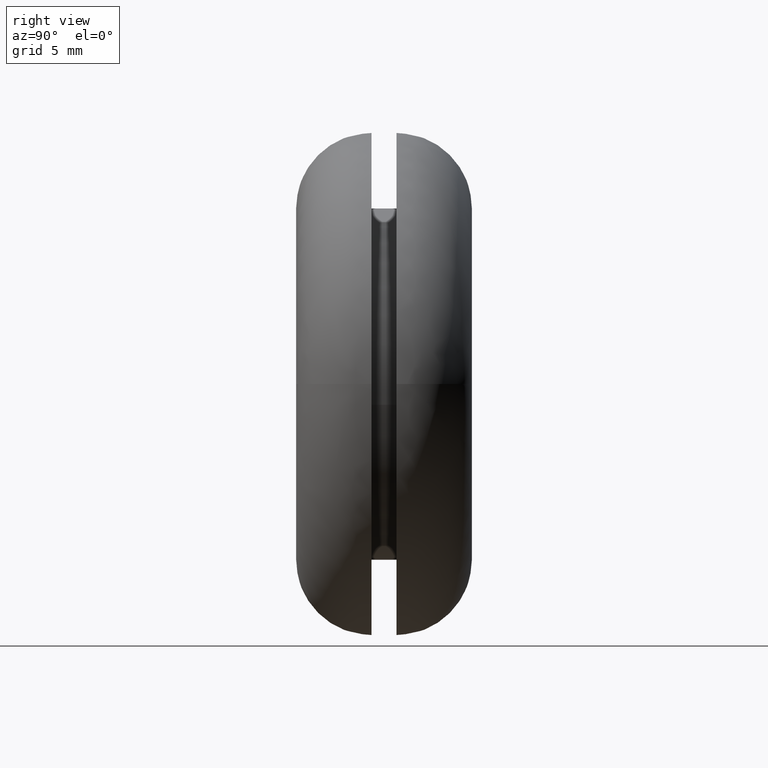
[diagram: clean part render]
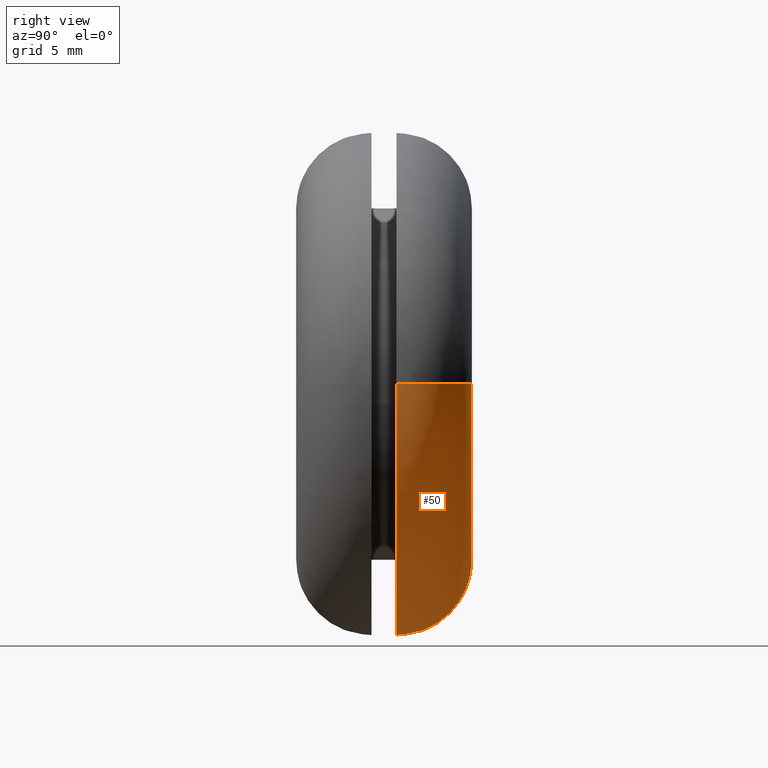
[diagram: same view with one face highlighted and labeled with its STEP entity id]
A machine part, right view. The second image highlights one B-rep face of the part: STEP entity #50.
In plain terms, the highlighted face is a freeform B-spline surface patch.
Its self-contained STEP definition (entity closure, byte-faithful):
#50=ADVANCED_FACE('',(#157),#156,.T.);
#156=( BOUNDED_SURFACE() B_SPLINE_SURFACE( 2,2,((#272,#273,#274,#275,#276),(#277,#278,#279,#280,#281),(#282,#283,#284,#285,#286),(#287,#288,#289,#290,#291),(#292,#293,#294,#295,#296)), .UNSPECIFIED.,.F.,.F.,.F.) B_SPLINE_SURFACE_WITH_KNOTS((3,2,3),(3,2,3),(0.00000000000E+000,5.00000000000E-001,1.00000000000E+000),(0.00000000000E+000,5.00000000000E-001,1.00000000000E+000), .UNSPECIFIED. ) GEOMETRIC_REPRESENTATION_ITEM() RATIONAL_B_SPLINE_SURFACE(((1.00000000000E+000,7.07106780997E-001,1.00000000000E+000,7.07106780997E-001,1.00000000000E+000),(7.07106781187E-001,4.99999999866E-001,7.07106781187E-001,4.99999999866E-001,7.07106781187E-001),(1.00000000000E+000,7.07106780997E-001,1.00000000000E+000,7.07106780997E-001,1.00000000000E+000),(7.07106781187E-001,4.99999999866E-001,7.07106781187E-001,4.99999999866E-001,7.07106781187E-001),(1.00000000000E+000,7.07106780997E-001,1.00000000000E+000,7.07106780997E-001,1.00000000000E+000))) REPRESENTATION_ITEM('') SURFACE() );
#157=FACE_OUTER_BOUND('',#297,.T.);
#272=CARTESIAN_POINT('',(-4.00000000002E+000,3.99999999678E+000,3.23415556568E-013));
#273=CARTESIAN_POINT('',(-3.99999999679E+000,6.99999999839E+000,2.49298796170E-013));
#274=CARTESIAN_POINT('',(-6.99999999840E+000,7.00000000001E+000,2.48931414224E-013));
#275=CARTESIAN_POINT('',(-1.00000000000E+001,7.00000000162E+000,2.48564032278E-013));
#276=CARTESIAN_POINT('',(-1.00000000000E+001,4.00000000001E+000,3.22680792676E-013));
#277=CARTESIAN_POINT('',(-4.00000000002E+000,3.99999999678E+000,-4.00000000001E+000));
#278=CARTESIAN_POINT('',(-3.99999999679E+000,6.99999999839E+000,-3.99999999678E+000));
#279=CARTESIAN_POINT('',(-6.99999999840E+000,7.00000000001E+000,-6.99999999840E+000));
#280=CARTESIAN_POINT('',(-1.00000000000E+001,7.00000000162E+000,-1.00000000000E+001));
#281=CARTESIAN_POINT('',(-1.00000000000E+001,4.00000000001E+000,-1.00000000000E+001));
#282=CARTESIAN_POINT('',(-8.02198380323E-012,3.99999999678E+000,-4.00000000001E+000));
#283=CARTESIAN_POINT('',(-6.38576301356E-012,6.99999999839E+000,-3.99999999678E+000));
#284=CARTESIAN_POINT('',(-6.38557932779E-012,7.00000000000E+000,-6.99999999840E+000));
#285=CARTESIAN_POINT('',(-6.38539564202E-012,7.00000000162E+000,-1.00000000000E+001));
#286=CARTESIAN_POINT('',(-8.02161643170E-012,4.00000000000E+000,-1.00000000000E+001));
#287=CARTESIAN_POINT('',(4.00000000000E+000,3.99999999678E+000,-4.00000000001E+000));
#288=CARTESIAN_POINT('',(3.99999999678E+000,6.99999999839E+000,-3.99999999678E+000));
#289=CARTESIAN_POINT('',(6.99999999839E+000,7.00000000000E+000,-6.99999999840E+000));
#290=CARTESIAN_POINT('',(1.00000000000E+001,7.00000000161E+000,-1.00000000000E+001));
#291=CARTESIAN_POINT('',(1.00000000000E+001,4.00000000000E+000,-1.00000000000E+001));
#292=CARTESIAN_POINT('',(4.00000000000E+000,3.99999999678E+000,3.23905382932E-013));
#293=CARTESIAN_POINT('',(3.99999999678E+000,6.99999999839E+000,2.49788622533E-013));
#294=CARTESIAN_POINT('',(6.99999999839E+000,7.00000000000E+000,2.49788610360E-013));
#295=CARTESIAN_POINT('',(1.00000000000E+001,7.00000000161E+000,2.49788598186E-013));
#296=CARTESIAN_POINT('',(1.00000000000E+001,4.00000000000E+000,3.23905358585E-013));
#297=EDGE_LOOP('',(#387,#388,#389,#390,#391,#392,#393));
#387=ORIENTED_EDGE('',*,*,#401,.F.);
#388=ORIENTED_EDGE('',*,*,#400,.F.);
#389=ORIENTED_EDGE('',*,*,#405,.F.);
#390=ORIENTED_EDGE('',*,*,#436,.F.);
#391=ORIENTED_EDGE('',*,*,#409,.T.);
#392=ORIENTED_EDGE('',*,*,#411,.T.);
#393=ORIENTED_EDGE('',*,*,#437,.T.);
#400=EDGE_CURVE('',#438,#439,#440,.T.);
#401=EDGE_CURVE('',#439,#446,#447,.T.);
#405=EDGE_CURVE('',#467,#438,#474,.T.);
#409=EDGE_CURVE('',#501,#502,#503,.T.);
#411=EDGE_CURVE('',#502,#509,#516,.T.);
#436=EDGE_CURVE('',#501,#467,#684,.T.);
#437=EDGE_CURVE('',#509,#446,#690,.T.);
#438=VERTEX_POINT('',#696);
#439=VERTEX_POINT('',#697);
#440=CIRCLE('',#701,1.00000000007E+001);
#446=VERTEX_POINT('',#702);
#447=CIRCLE('',#706,1.00000000000E+001);
#467=VERTEX_POINT('',#717);
#474=CIRCLE('',#725,1.00000000000E+001);
#501=VERTEX_POINT('',#741);
#502=VERTEX_POINT('',#742);
#503=CIRCLE('',#746,7.00000000011E+000);
#509=VERTEX_POINT('',#747);
#516=CIRCLE('',#755,7.00000000011E+000);
#684=(BOUNDED_CURVE() B_SPLINE_CURVE(2,(#862,#863,#864),.UNSPECIFIED.,.F.,.F.) B_SPLINE_CURVE_WITH_KNOTS((3,3),(5.00000000000E-001,1.00000000000E+000),.UNSPECIFIED.) CURVE() GEOMETRIC_REPRESENTATION_ITEM() RATIONAL_B_SPLINE_CURVE((1.00000000000E+000,7.07106780997E-001,1.00000000000E+000)) REPRESENTATION_ITEM('') );
#690=(BOUNDED_CURVE() B_SPLINE_CURVE(3,(#865,#866,#867,#868,#869),.UNSPECIFIED.,.F.,.F.) B_SPLINE_CURVE_WITH_KNOTS((4,1,4),(4.99999699749E-001,7.49999827100E-001,1.00000000000E+000),.UNSPECIFIED.) CURVE() GEOMETRIC_REPRESENTATION_ITEM() RATIONAL_B_SPLINE_CURVE((1.00000000000E+000,1.00000000000E+000,1.00000000000E+000,1.00000000000E+000,1.00000000000E+000)) REPRESENTATION_ITEM('') );
#696=CARTESIAN_POINT('',(0.00000000000E+000,4.00000000000E+000,-1.00000000000E+001));
#697=CARTESIAN_POINT('',(9.97565673832E+000,4.00000000002E+000,-6.97332517021E-001));
#698=CARTESIAN_POINT('',(-6.29946761421E-010,4.00000000002E+000,6.75516531601E-010));
#699=DIRECTION('',(9.42055475210E-017,-1.00000000000E+000,2.20810036907E-012));
#700=DIRECTION('',(-6.29946761379E-011,2.20810036907E-012,1.00000000000E+000));
#701=AXIS2_PLACEMENT_3D('',#698,#699,#700);
#702=CARTESIAN_POINT('',(9.99999999304E+000,3.99999999998E+000,3.73214900256E-004));
#703=CARTESIAN_POINT('',(5.32907051820E-015,4.00000000003E+000,7.99360577730E-015));
#704=DIRECTION('',(-5.29288276948E-012,-1.00000000000E+000,-5.86217477565E-011));
#705=DIRECTION('',(-9.97565673832E-001,1.19211307492E-012,6.97332517021E-002));
#706=AXIS2_PLACEMENT_3D('',#703,#704,#705);
#717=CARTESIAN_POINT('',(-1.00000000000E+001,3.99999999998E+000,3.22072480326E-013));
#722=CARTESIAN_POINT('',(-1.24344978758E-014,4.00000000003E+000,-1.33226762955E-014));
#723=DIRECTION('',(5.48787079013E-012,-1.00000000000E+000,3.25471571419E-010));
#724=DIRECTION('',(9.99921044204E-001,1.39754874340E-012,-1.25660398839E-002));
#725=AXIS2_PLACEMENT_3D('',#722,#723,#724);
#741=CARTESIAN_POINT('',(-7.00000000016E+000,7.00000000000E+000,2.46670933393E-013));
#742=CARTESIAN_POINT('',(-6.66133814775E-016,7.00000000000E+000,-7.00000000022E+000));
#743=CARTESIAN_POINT('',(-4.86592988125E-011,7.00000000000E+000,-1.11080034060E-010));
#744=DIRECTION('',(-2.87796114870E-016,-1.00000000000E+000,-4.11705346929E-015));
#745=DIRECTION('',(6.95160595754E-012,4.11705346929E-015,-1.00000000000E+000));
#746=AXIS2_PLACEMENT_3D('',#743,#744,#745);
#747=CARTESIAN_POINT('',(6.99999996236E+000,7.00000000000E+000,7.26521373382E-004));
#752=CARTESIAN_POINT('',(-4.86592988125E-011,7.00000000000E+000,-1.11080034060E-010));
#753=DIRECTION('',(-2.87796114870E-016,-1.00000000000E+000,-4.11705346929E-015));
#754=DIRECTION('',(6.95160595754E-012,4.11705346929E-015,-1.00000000000E+000));
#755=AXIS2_PLACEMENT_3D('',#752,#753,#754);
#862=CARTESIAN_POINT('',(-6.99999999840E+000,7.00000000001E+000,2.48931414224E-013));
#863=CARTESIAN_POINT('',(-1.00000000000E+001,7.00000000162E+000,2.48564032278E-013));
#864=CARTESIAN_POINT('',(-1.00000000000E+001,4.00000000001E+000,3.22680792676E-013));
#865=CARTESIAN_POINT('',(6.99999745067E+000,7.00000000000E+000,2.50466314280E-013));
#866=CARTESIAN_POINT('',(7.77834910816E+000,7.00667285034E+000,2.50497541497E-013));
#867=CARTESIAN_POINT('',(9.35012812626E+000,6.35013026811E+000,2.66923858063E-013));
#868=CARTESIAN_POINT('',(1.00066721961E+001,4.77835180516E+000,3.05473838538E-013));
#869=CARTESIAN_POINT('',(1.00000000000E+001,4.00000000000E+000,3.24481182664E-013));